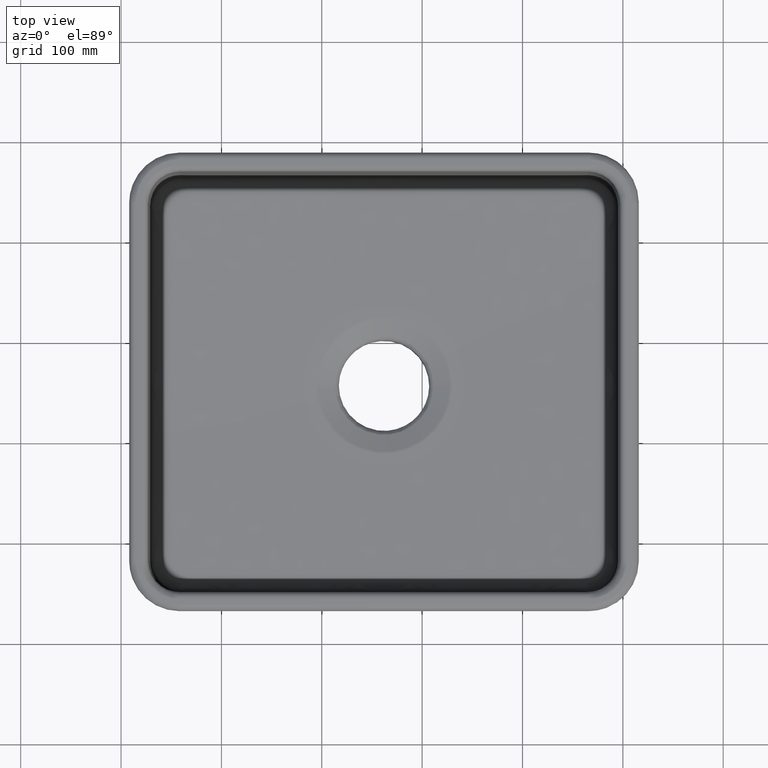
[diagram: clean part render]
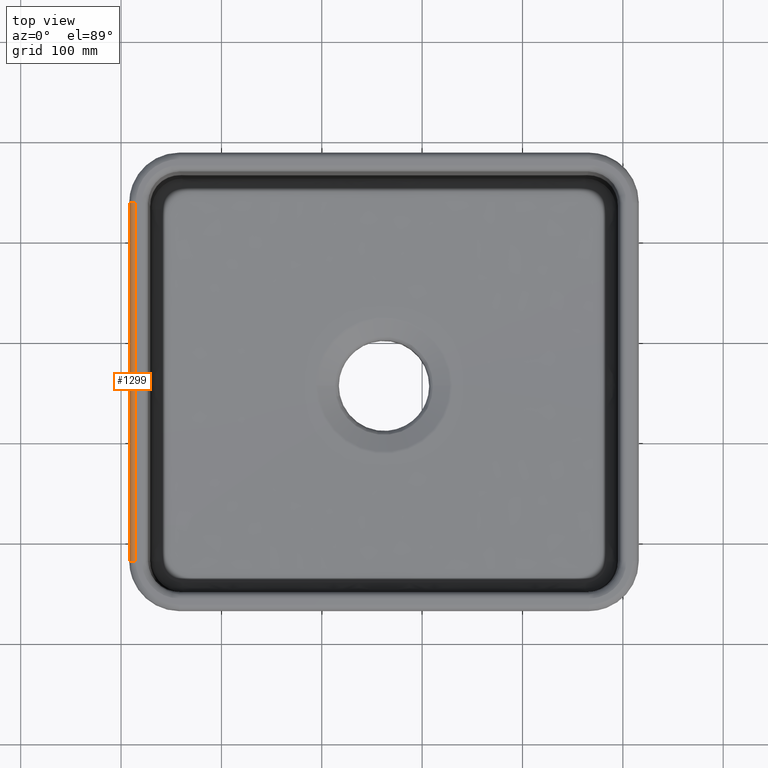
[diagram: same view with one face highlighted and labeled with its STEP entity id]
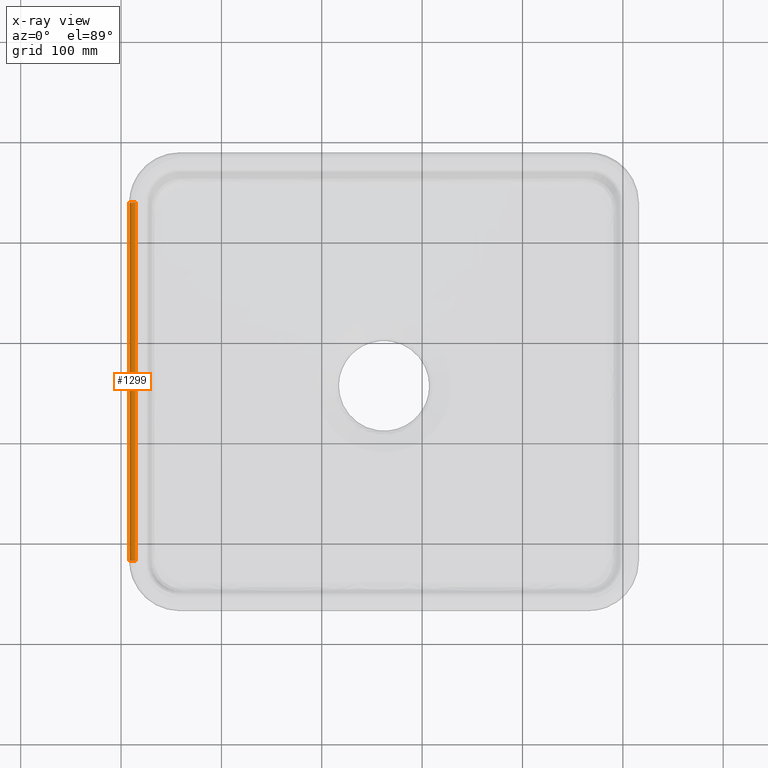
[diagram: x-ray of the same camera — body ghosted, the highlighted face saturated]
A machine part, top view. The second image highlights one B-rep face of the part: STEP entity #1299.
The next image is the same camera in x-ray: the body ghosted, the highlighted face saturated — about 0% of this face is hidden behind the body in this view.
In plain terms, the highlighted cylindrical surface (edge-blend (fillet) strip) has radius 6.5 mm, axis along (0, -1, 0).
Its self-contained STEP definition (entity closure, byte-faithful):
#148=CYLINDRICAL_SURFACE('',#6917,6.5);
#261=CIRCLE('',#6915,6.5);
#262=CIRCLE('',#6916,6.5);
#853=FACE_OUTER_BOUND('',#1817,.T.);
#1299=ADVANCED_FACE('',(#853),#148,.T.);
#1817=EDGE_LOOP('',(#2984,#2985,#2986,#2987));
#2984=ORIENTED_EDGE('',*,*,#5478,.T.);
#2985=ORIENTED_EDGE('',*,*,#5604,.T.);
#2986=ORIENTED_EDGE('',*,*,#5494,.T.);
#2987=ORIENTED_EDGE('',*,*,#5605,.F.);
#4886=VERTEX_POINT('',#8995);
#4887=VERTEX_POINT('',#8996);
#4902=VERTEX_POINT('',#9028);
#4903=VERTEX_POINT('',#9029);
#5478=EDGE_CURVE('',#4886,#4887,#6480,.T.);
#5494=EDGE_CURVE('',#4902,#4903,#6488,.T.);
#5604=EDGE_CURVE('',#4887,#4902,#261,.T.);
#5605=EDGE_CURVE('',#4886,#4903,#262,.T.);
#6480=LINE('',#8994,#6675);
#6488=LINE('',#9027,#6683);
#6675=VECTOR('',#7500,1.);
#6683=VECTOR('',#7526,1.);
#6915=AXIS2_PLACEMENT_3D('',#9671,#7661,#7662);
#6916=AXIS2_PLACEMENT_3D('',#9672,#7663,#7664);
#6917=AXIS2_PLACEMENT_3D('',#9673,#7665,#7666);
#7500=DIRECTION('',(0.,1.,0.));
#7526=DIRECTION('',(0.,-1.,0.));
#7661=DIRECTION('',(0.,-1.,0.));
#7662=DIRECTION('',(0.,0.,-1.));
#7663=DIRECTION('',(0.,-1.,0.));
#7664=DIRECTION('',(0.,0.,-1.));
#7665=DIRECTION('',(0.,-1.,0.));
#7666=DIRECTION('',(0.,0.,1.));
#8994=CARTESIAN_POINT('',(133.613790669334,0.,0.));
#8995=CARTESIAN_POINT('',(133.613790669334,50.1078227936218,0.));
#8996=CARTESIAN_POINT('',(133.613790669334,407.092177206378,0.));
#9027=CARTESIAN_POINT('',(127.114780650818,0.,-6.61344064184234));
#9028=CARTESIAN_POINT('',(127.114780650818,407.092177206378,-6.61344064184235));
#9029=CARTESIAN_POINT('',(127.114780650818,50.1078227936218,-6.61344064184235));
#9671=CARTESIAN_POINT('',(133.613790669334,407.092177206378,-6.5));
#9672=CARTESIAN_POINT('',(133.613790669334,50.1078227936218,-6.5));
#9673=CARTESIAN_POINT('',(133.613790669334,0.,-6.5));